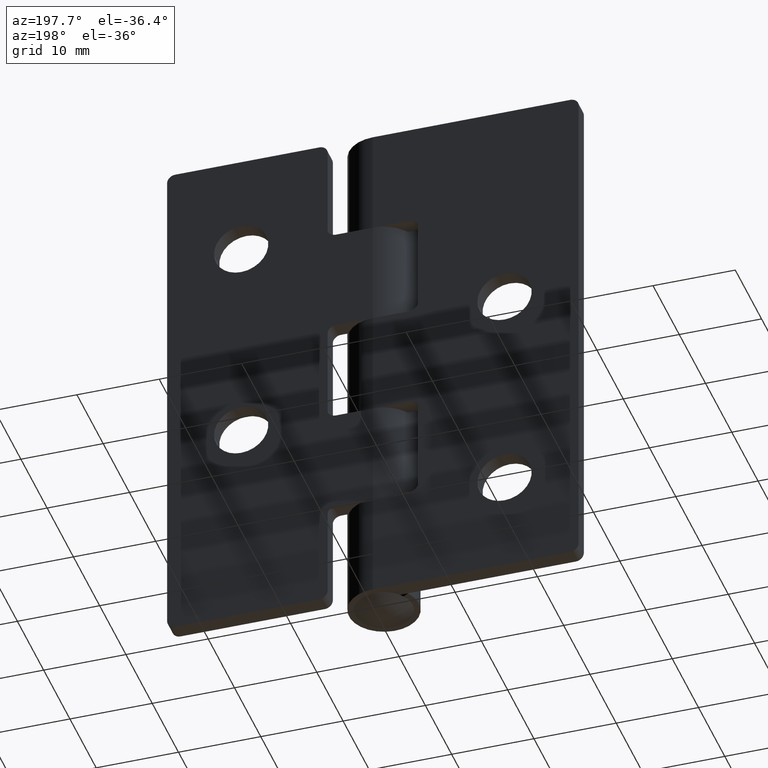
[diagram: clean part render]
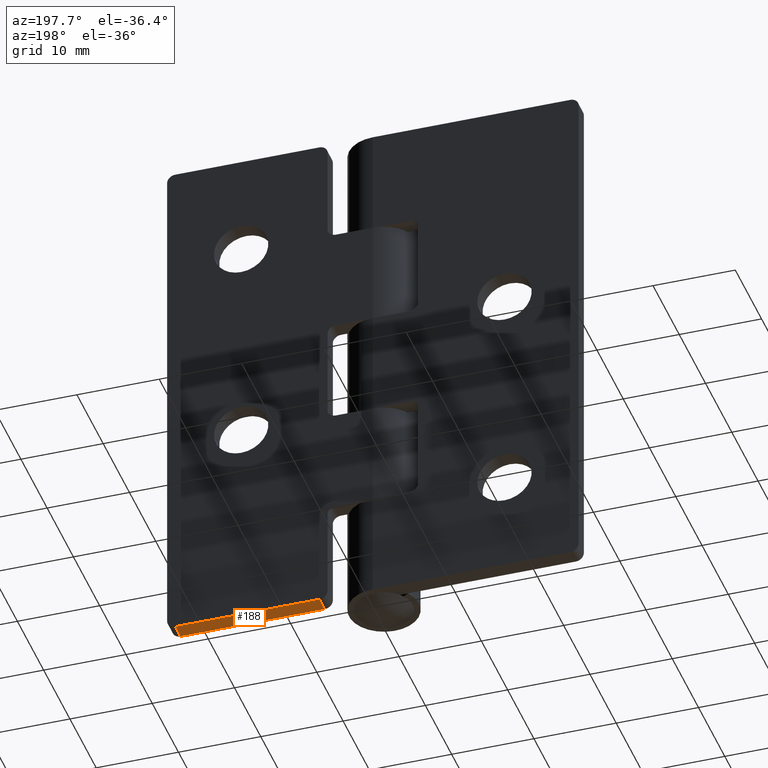
[diagram: same view with one face highlighted and labeled with its STEP entity id]
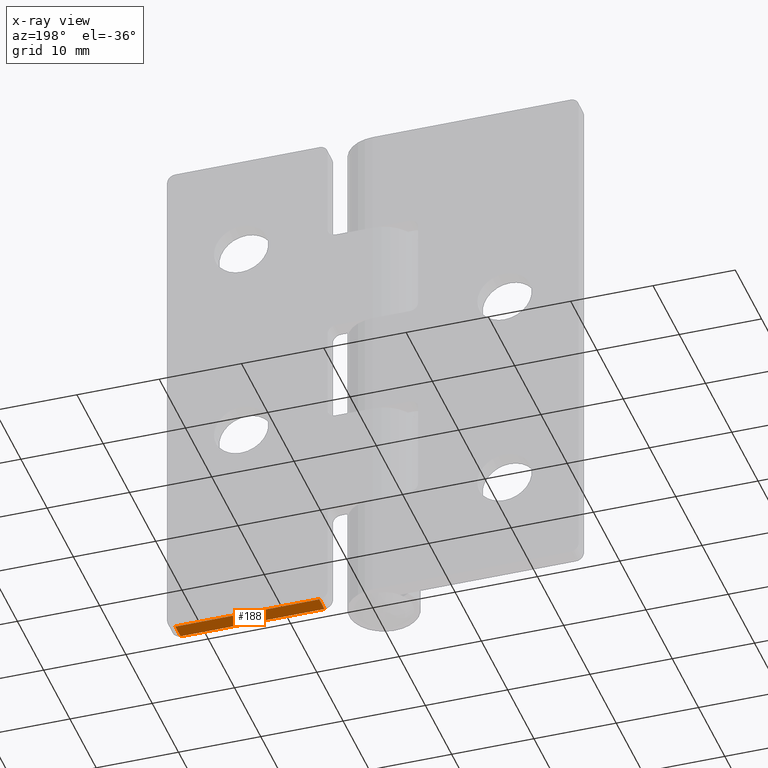
[diagram: x-ray of the same camera — body ghosted, the highlighted face saturated]
A machine part, auxiliary view. The second image highlights one B-rep face of the part: STEP entity #188.
The next image is the same camera in x-ray: the body ghosted, the highlighted face saturated — about 0% of this face is hidden behind the body in this view.
In plain terms, the highlighted planar face has unit normal (0, 0, 1).
Its self-contained STEP definition (entity closure, byte-faithful):
#188=ADVANCED_FACE('',(#614),#613,.F.);
#613=PLANE('',#1111);
#614=FACE_OUTER_BOUND('',#1112,.T.);
#1108=CARTESIAN_POINT('',(4.75000000000E+00,-2.20000000000E+00,-8.52651282912E-14));
#1109=DIRECTION('',(0.00000000000E+00,-0.00000000000E+00,1.00000000000E+00));
#1110=DIRECTION('',(1.00000000000E+00,0.00000000000E+00,0.00000000000E+00));
#1111=AXIS2_PLACEMENT_3D('',#1108,#1109,#1110);
#1112=EDGE_LOOP('',(#1485,#1486,#1487,#1488));
#1485=ORIENTED_EDGE('',*,*,#1739,.T.);
#1486=ORIENTED_EDGE('',*,*,#1761,.T.);
#1487=ORIENTED_EDGE('',*,*,#1762,.T.);
#1488=ORIENTED_EDGE('',*,*,#1763,.T.);
#1739=EDGE_CURVE('',#2556,#2549,#2557,.T.);
#1761=EDGE_CURVE('',#2549,#2703,#2704,.T.);
#1762=EDGE_CURVE('',#2703,#2710,#2711,.T.);
#1763=EDGE_CURVE('',#2710,#2556,#2717,.T.);
#2549=VERTEX_POINT('',#3502);
#2556=VERTEX_POINT('',#3507);
#2557=LINE('',#3508,#3509);
#2703=VERTEX_POINT('',#3599);
#2704=LINE('',#3600,#3601);
#2710=VERTEX_POINT('',#3603);
#2711=LINE('',#3604,#3605);
#2717=LINE('',#3607,#3608);
#3502=CARTESIAN_POINT('',(6.50000000000E+00,-2.00000000000E+00,-8.52651282912E-14));
#3507=CARTESIAN_POINT('',(2.40000000000E+01,-2.00000000000E+00,-8.52651282912E-14));
#3508=CARTESIAN_POINT('',(2.40000000000E+01,-2.00000000000E+00,-8.52651282912E-14));
#3509=VECTOR('',#3510,1.75000000000E+01);
#3510=DIRECTION('',(-1.00000000000E+00,0.00000000000E+00,0.00000000000E+00));
#3599=CARTESIAN_POINT('',(6.50000000000E+00,0.00000000000E+00,-8.52651282912E-14));
#3600=CARTESIAN_POINT('',(6.50000000000E+00,-2.00000000000E+00,-8.52651282912E-14));
#3601=VECTOR('',#3602,2.00000000000E+00);
#3602=DIRECTION('',(0.00000000000E+00,1.00000000000E+00,0.00000000000E+00));
#3603=CARTESIAN_POINT('',(2.40000000000E+01,0.00000000000E+00,-8.52651282912E-14));
#3604=CARTESIAN_POINT('',(6.50000000000E+00,0.00000000000E+00,-8.52651282912E-14));
#3605=VECTOR('',#3606,1.75000000000E+01);
#3606=DIRECTION('',(1.00000000000E+00,0.00000000000E+00,0.00000000000E+00));
#3607=CARTESIAN_POINT('',(2.40000000000E+01,0.00000000000E+00,-8.52651282912E-14));
#3608=VECTOR('',#3609,2.00000000000E+00);
#3609=DIRECTION('',(0.00000000000E+00,-1.00000000000E+00,0.00000000000E+00));